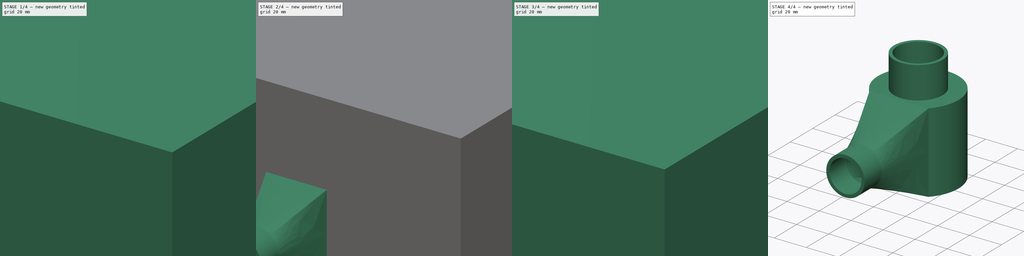
[diagram: build sequence overview — one tinted view per stage of 4, left to right]
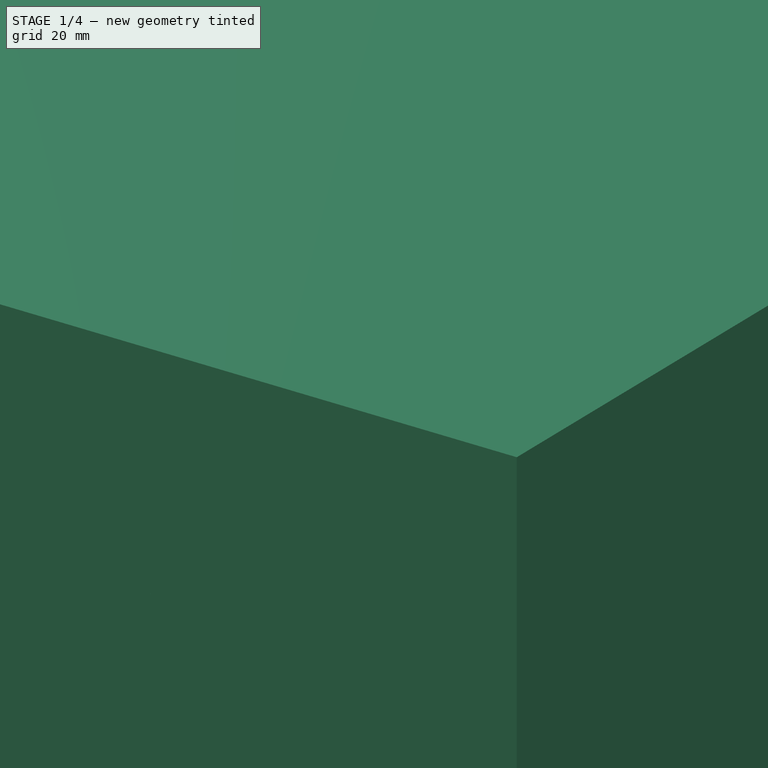
[diagram: stage 1 of 4 — iso view after this stage's code; geometry added in this stage tinted green]
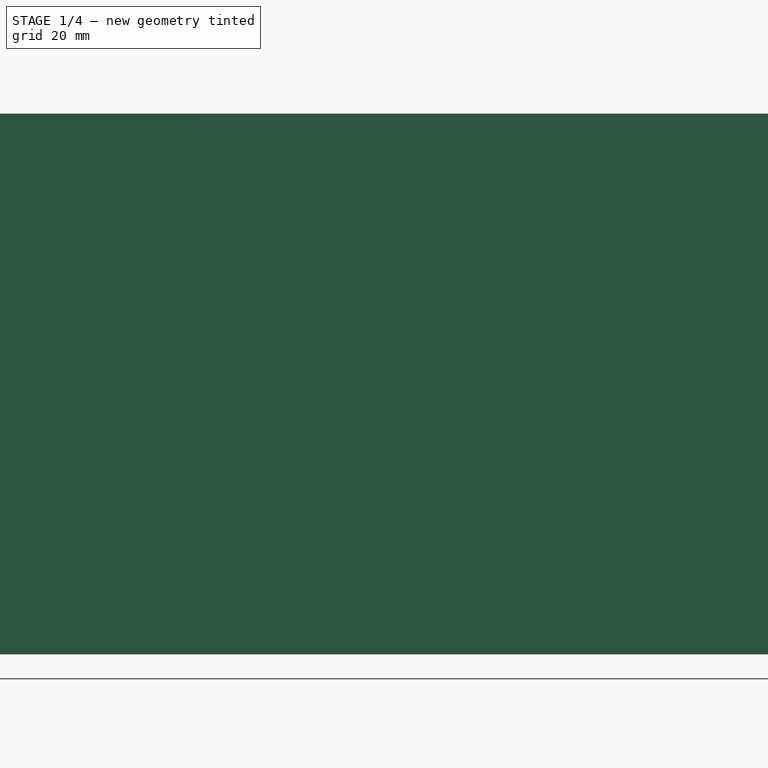
[diagram: stage 1 of 4 — front view after this stage's code; geometry added in this stage tinted green]
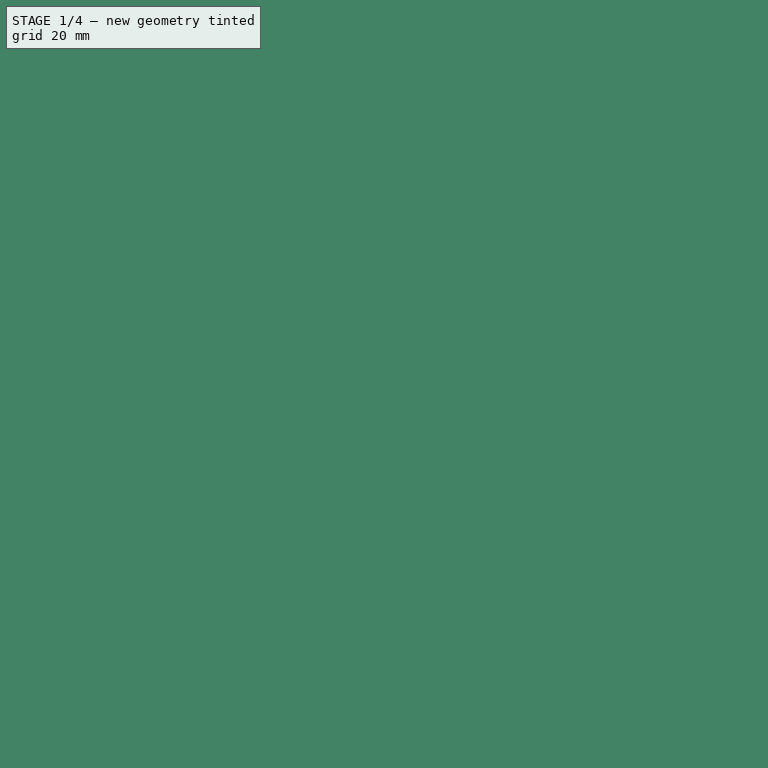
[diagram: stage 1 of 4 — top view after this stage's code; geometry added in this stage tinted green]
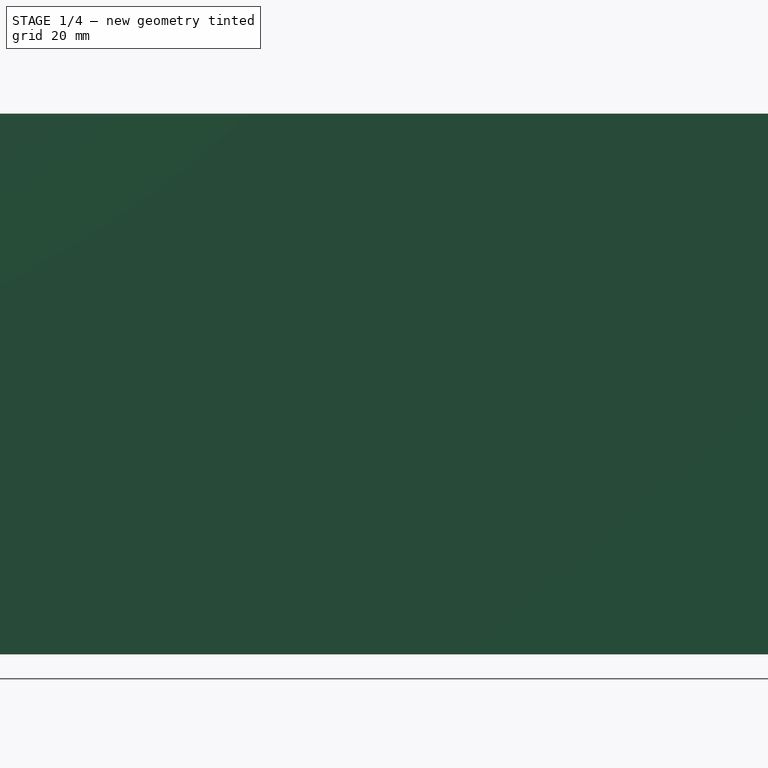
[diagram: stage 1 of 4 — right view after this stage's code; geometry added in this stage tinted green]
FCSTD DOCUMENT  (FreeCAD 0.18R4 (GitTag))
Label: honey_pump
License: All rights reserved
LicenseURL: http://en.wikipedia.org/wiki/All_rights_reserved
objects: PartDesign::Body×8, Sketcher::SketchObject×7, PartDesign::Pad×5, PartDesign::Boolean×4, PartDesign::FeatureBase×3, Spreadsheet::Sheet×1, PartDesign::Revolution×1, PartDesign::Plane×1, PartDesign::AdditiveLoft×1
note: 37 computed .brp shape members not serialized (recipe doc carries the construction recipe); baked Part::Feature solids carry a one-line shape summary decoded from their .brp

FEATURE [Spreadsheet::Sheet] Spreadsheet
  cells = A3=Auger shank radius; B3(auger_shank_r)==13 / 2; A4=Auger main radius; B4(auger_main_r)=10; A5=Extra radius for honey flowing off auger; B5(flow_extra_r)=10; A6=Body width; B6(body_z)=50; A7=Wall thickness; B7(wt)=2; A8=Pipe OD; B8(pipe_od)=28; A9=Pipe ID; B9(pipe_id)=24; A10=Outlet drop; B10(outlet_drop)=50; A11=Outlet straight section length; B11(outlet_length)=15; A12=Z fight fudge; B12(zff)=0.01; A13=Flow tube OD; B13(flow_tube_od)=26.4; A14=Shank sleeve length; B14(shank_sleeve_z)=15; A15=Flow tube sleeve length; B15(flow_tube_sleeve_z)=20; A16=Drain slice start offset; B16(drain_slice_offset)==Spreadsheet.wt * 2 + Spreadsheet.flow_tube_od / 2
FEATURE [Sketcher::SketchObject] Sketch002
  MapMode = 5
  Placement = pos=(0,0,0) rot=(1,0,0;1.5708rad)
  Support = -> [XZ_Plane002]
  expr: Constraints[35] = Spreadsheet.flow_extra_r
  expr: Constraints[34] = Spreadsheet.flow_tube_sleeve_z
  expr: Constraints[33] = Spreadsheet.wt
  expr: Constraints[32] = Spreadsheet.flow_tube_od / 2
  expr: Constraints[29] = Spreadsheet.auger_shank_r
  expr: Constraints[26] = Spreadsheet.wt
  expr: Constraints[30] = Spreadsheet.body_z
  expr: Constraints[25] = Spreadsheet.wt
  expr: Constraints[28] = Spreadsheet.shank_sleeve_z
  expr: Constraints[27] = Spreadsheet.wt
  expr: Constraints[24] = Spreadsheet.wt
  sketch-geometry (12):
    g0: LineSegment StartX=-15.2 StartY=50 StartZ=0 EndX=-15.2 EndY=70 EndZ=0
    g1: LineSegment StartX=-15.2 StartY=70 StartZ=0 EndX=-13.2 EndY=70 EndZ=0
    g2: LineSegment StartX=-13.2 StartY=70 StartZ=0 EndX=-13.2 EndY=48 EndZ=0
    g3: LineSegment StartX=-13.2 StartY=48 StartZ=0 EndX=-23.2 EndY=48 EndZ=0
    g4: LineSegment StartX=-23.2 StartY=48 StartZ=0 EndX=-23.2 EndY=2 EndZ=0
    g5: LineSegment StartX=-23.2 StartY=2 StartZ=0 EndX=-8.5 EndY=2 EndZ=0
    g6: LineSegment StartX=-8.5 StartY=2 StartZ=0 EndX=-8.5 EndY=17 EndZ=0
    g7: LineSegment StartX=-8.5 StartY=17 StartZ=0 EndX=-6.5 EndY=17 EndZ=0
    g8: LineSegment StartX=-6.5 StartY=17 StartZ=0 EndX=-6.5 EndY=0 EndZ=0
    g9: LineSegment StartX=-6.5 StartY=0 StartZ=0 EndX=-25.2 EndY=0 EndZ=0
    g10: LineSegment StartX=-25.2 StartY=0 StartZ=0 EndX=-25.2 EndY=50 EndZ=0
    g11: LineSegment StartX=-25.2 StartY=50 StartZ=0 EndX=-15.2 EndY=50 EndZ=0
  constraints (36):
    c: Vertical(g0)
    c: Coincident(g0,g1)
    c: Horizontal(g1)
    c: Coincident(g1,g2)
    c: Vertical(g2)
    c: Coincident(g2,g3)
    c: Horizontal(g3)
    c: Coincident(g3,g4)
    c: Vertical(g4)
    c: Coincident(g4,g5)
    c: Horizontal(g5)
    c: Coincident(g5,g6)
    c: Vertical(g6)
    c: Coincident(g6,g7)
    c: Coincident(g7,g8)
    c: Vertical(g8)
    c: Coincident(g8,g9)
    c: Horizontal(g9)
    c: Coincident(g9,g10)
    c: Vertical(g10)
    c: Coincident(g10,g11)
    c: Coincident(g11,g0)
    c: Horizontal(g11)
    c: Horizontal(g7)
    c: Distance(g7) = 2
    c: DistanceY(g2,g0) = 2
    c: DistanceX(g10,g3) = 2
    c: DistanceY(g9,g4) = 2
    c: Distance(g6) = 15
    c: DistanceX(g8,g-1) = 6.5
    c: Distance(g10) = 50
    c: PointOnObject(g8,g-1)
    c: DistanceX(g2,g-1) = 13.2
    c: Distance(g1) = 2
    c: Distance(g0) = 20
    c: Distance(g3) = 10
FEATURE [PartDesign::Revolution] Revolution001
  Angle = 360
  Axis = (0,-2e-16,1)
  Base = (0,0,0)
  Placement = pos=(0,0,0) rot=(1,0,0;1.5708rad)
  Profile = -> Sketch002
  ReferenceAxis = -> Sketch002 [V_Axis]
FEATURE [Sketcher::SketchObject] Sketch005
  MapMode = 5
  Support = -> [XY_Plane004]
  expr: Constraints[9] = Spreadsheet.drain_slice_offset
  expr: Constraints[8] = 100
  sketch-geometry (4):
    g0: LineSegment StartX=-50 StartY=82.8 StartZ=0 EndX=50 EndY=82.8 EndZ=0
    g1: LineSegment StartX=50 StartY=82.8 StartZ=0 EndX=50 EndY=-17.2 EndZ=0
    g2: LineSegment StartX=50 StartY=-17.2 StartZ=0 EndX=-50 EndY=-17.2 EndZ=0
    g3: LineSegment StartX=-50 StartY=-17.2 StartZ=0 EndX=-50 EndY=82.8 EndZ=0
  constraints (11):
    c: Coincident(g0,g1)
    c: Coincident(g1,g2)
    c: Coincident(g2,g3)
    c: Coincident(g3,g0)
    c: Horizontal(g2)
    c: Vertical(g1)
    c: Vertical(g3)
    c: Symmetric(g0,g0,g-2)
    c: Distance(g0) = 100
    c: DistanceY(g2,g-1) = 17.2
    c: Distance(g1) = 100
FEATURE [PartDesign::Pad] Pad001
  Length = 100
  Length2 = 100
  Profile = -> Sketch005
  Type = 0
FEATURE [PartDesign::Body] Body004
  Group = -> [Sketch005,Pad001]
  Origin = -> Origin004
  Tip = -> Pad001
FEATURE [PartDesign::Boolean] Boolean
  BaseFeature = -> Revolution001
  Group = -> [Body004]
  Type = 2
FEATURE [Sketcher::SketchObject] Sketch011
  MapMode = 5
  Support = -> [XY_Plane009]
  expr: Constraints[8] = Spreadsheet.drain_slice_offset
  sketch-geometry (4):
    g0: LineSegment StartX=-100 StartY=182.8 StartZ=0 EndX=100 EndY=182.8 EndZ=0
    g1: LineSegment StartX=100 StartY=182.8 StartZ=0 EndX=100 EndY=-17.2 EndZ=0
    g2: LineSegment StartX=100 StartY=-17.2 StartZ=0 EndX=-100 EndY=-17.2 EndZ=0
    g3: LineSegment StartX=-100 StartY=-17.2 StartZ=0 EndX=-100 EndY=182.8 EndZ=0
  constraints (11):
    c: Coincident(g0,g1)
    c: Coincident(g1,g2)
    c: Coincident(g2,g3)
    c: Coincident(g3,g0)
    c: Horizontal(g2)
    c: Vertical(g1)
    c: Vertical(g3)
    c: Symmetric(g0,g0,g-2)
    c: DistanceY(g1,g-1) = 17.2
    c: Distance(g3) = 200
    c: Distance(g0) = 200
FEATURE [PartDesign::Pad] Pad004
  Length = 100
  Length2 = 100
  Profile = -> Sketch011
  Type = 0
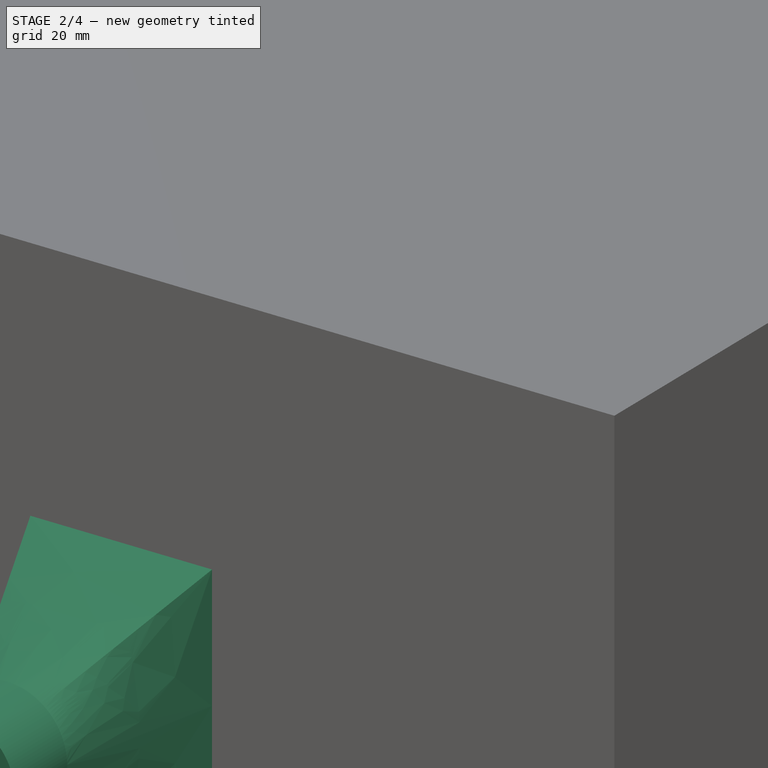
[diagram: stage 2 of 4 — iso view after this stage's code; geometry added in this stage tinted green]
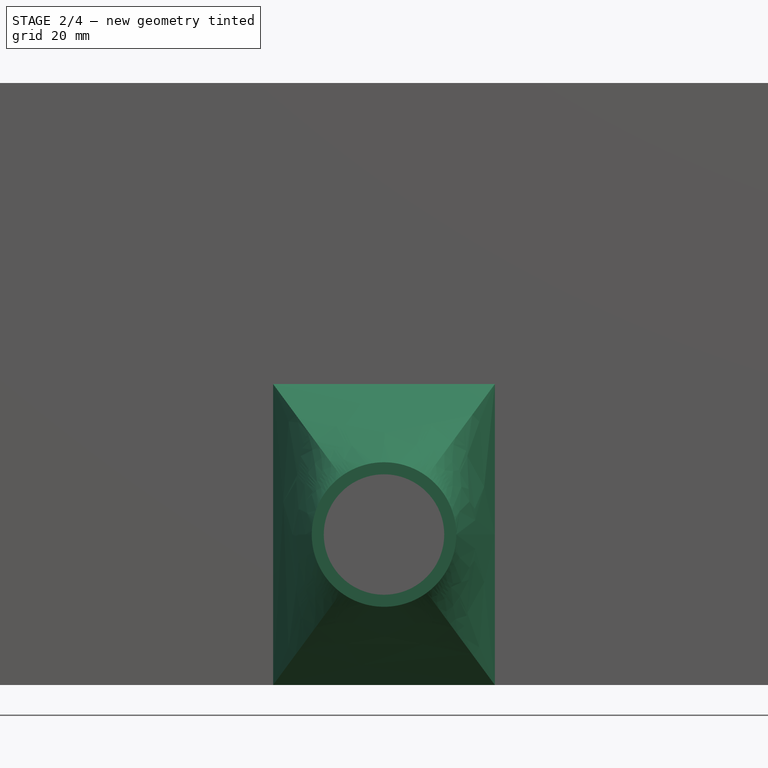
[diagram: stage 2 of 4 — front view after this stage's code; geometry added in this stage tinted green]
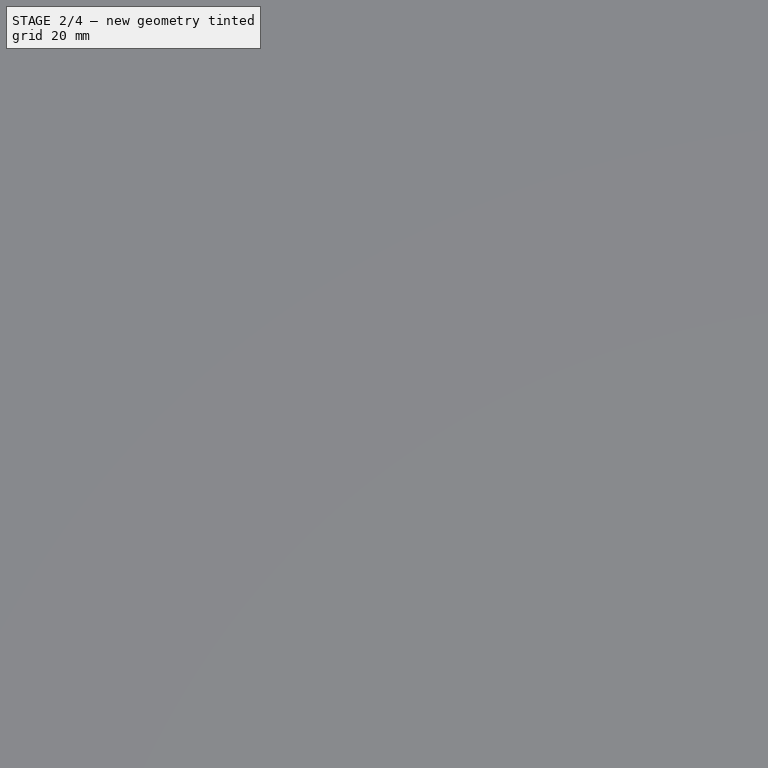
[diagram: stage 2 of 4 — top view after this stage's code; geometry added in this stage tinted green]
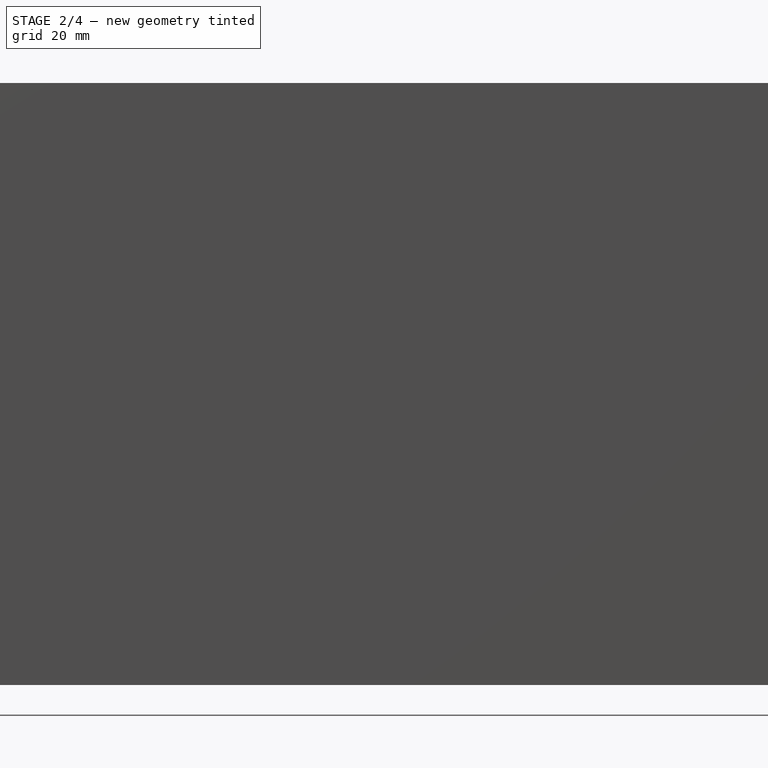
[diagram: stage 2 of 4 — right view after this stage's code; geometry added in this stage tinted green]
FEATURE [PartDesign::Plane] DatumPlane
  Length = 63.041
  MapMode = 5
  Placement = pos=(0,-17.2,0) rot=(1,0,0;1.5708rad)
  ResizeMode = 0
  Support = -> [Boolean]
  Width = 92.6931
FEATURE [Sketcher::SketchObject] Sketch006
  ExternalGeometry = -> [Boolean]
  MapMode = 5
  Placement = pos=(0,-17.2,0) rot=(1,0,0;1.5708rad)
  Support = -> [Boolean]
  sketch-geometry (8):
    g0: LineSegment StartX=-18.4174 StartY=50 StartZ=0 EndX=18.4174 EndY=50 EndZ=0
    g1: LineSegment StartX=18.4174 StartY=50 StartZ=0 EndX=18.4174 EndY=0 EndZ=0
    g2: LineSegment StartX=18.4174 StartY=0 StartZ=0 EndX=-18.4174 EndY=0 EndZ=0
    g3: LineSegment StartX=-18.4174 StartY=0 StartZ=0 EndX=-18.4174 EndY=50 EndZ=0
    g4: LineSegment StartX=15.5692 StartY=2 StartZ=0 EndX=-15.5692 EndY=2 EndZ=0
    g5: LineSegment StartX=-15.5692 StartY=2 StartZ=0 EndX=-15.5692 EndY=48 EndZ=0
    g6: LineSegment StartX=-15.5692 StartY=48 StartZ=0 EndX=15.5692 EndY=48 EndZ=0
    g7: LineSegment StartX=15.5692 StartY=48 StartZ=0 EndX=15.5692 EndY=2 EndZ=0
  constraints (20):
    c: Coincident(g0,g1)
    c: Coincident(g1,g2)
    c: Coincident(g2,g3)
    c: Coincident(g3,g0)
    c: Horizontal(g0)
    c: Horizontal(g2)
    c: Vertical(g1)
    c: Vertical(g3)
    c: Coincident(g0,g-8)
    c: Coincident(g1,g-9)
    c: Coincident(g4,g5)
    c: Coincident(g5,g6)
    c: Coincident(g6,g7)
    c: Coincident(g7,g4)
    c: Horizontal(g4)
    c: Horizontal(g6)
    c: Vertical(g5)
    c: Vertical(g7)
    c: Coincident(g4,g-10)
    c: Coincident(g5,g-7)
FEATURE [Sketcher::SketchObject] Sketch008
  AttachmentOffset = pos=(0,0,50) rot=(1,0,0;0rad)
  MapMode = 5
  Placement = pos=(0,-50,-1.11e-14) rot=(1,0,0;1.5708rad)
  Support = -> [XZ_Plane002]
  expr: AttachmentOffset.Base.z = Spreadsheet.outlet_drop
  expr: Constraints[4] = Spreadsheet.body_z / 2
  expr: Constraints[1] = Spreadsheet.pipe_id / 2 - Spreadsheet.wt
  expr: Constraints[0] = Spreadsheet.pipe_id / 2
  sketch-geometry (2):
    g0: Circle CenterX=0 CenterY=25 CenterZ=0 NormalX=0 NormalY=0 NormalZ=1 AngleXU=0 Radius=12
    g1: Circle CenterX=0 CenterY=25 CenterZ=0 NormalX=0 NormalY=0 NormalZ=1 AngleXU=0 Radius=10
  constraints (5):
    c: Radius(g0) = 12
    c: Radius(g1) = 10
    c: PointOnObject(g0,g-2)
    c: Coincident(g0,g1)
    c: DistanceY(g-1,g0) = 25
FEATURE [PartDesign::AdditiveLoft] AdditiveLoft
  BaseFeature = -> Boolean
  Closed = false
  Profile = -> Sketch008
  Ruled = false
  Sections = -> [Sketch006]
FEATURE [PartDesign::Pad] Pad002
  BaseFeature = -> AdditiveLoft
  Length = 15
  Length2 = 100
  Profile = -> AdditiveLoft [Face11]
  Type = 0
  expr: Length = Spreadsheet.outlet_length
FEATURE [PartDesign::Body] Body007  label="Drain"
  Group = -> [Clone001,Boolean002]
  Origin = -> Origin007
  Placement = pos=(0,0,0) rot=(1,0,0;-1.5708rad)
  Tip = -> Boolean002
FEATURE [PartDesign::FeatureBase] Clone002
  BaseFeature = -> Body002
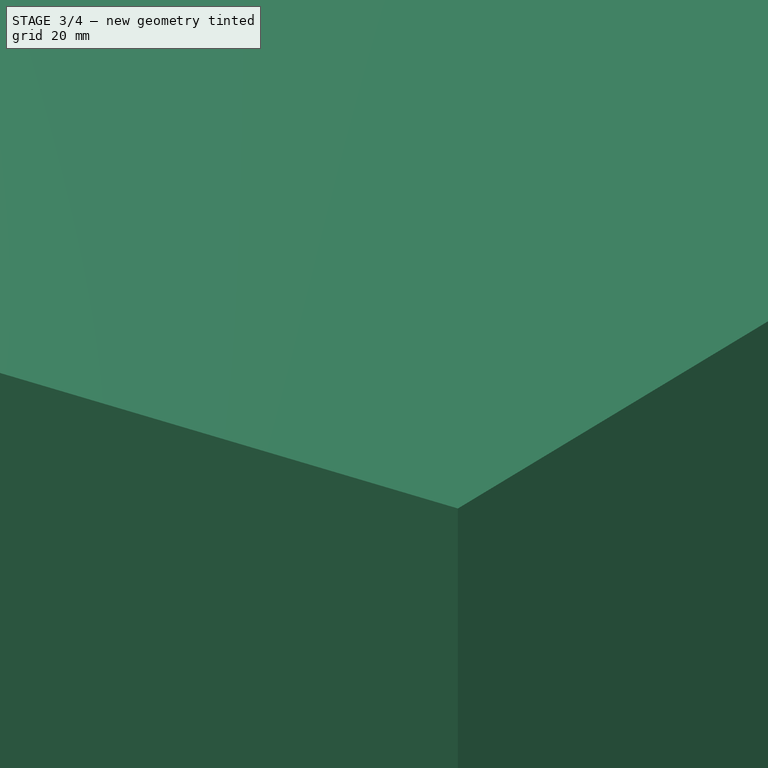
[diagram: stage 3 of 4 — iso view after this stage's code; geometry added in this stage tinted green]
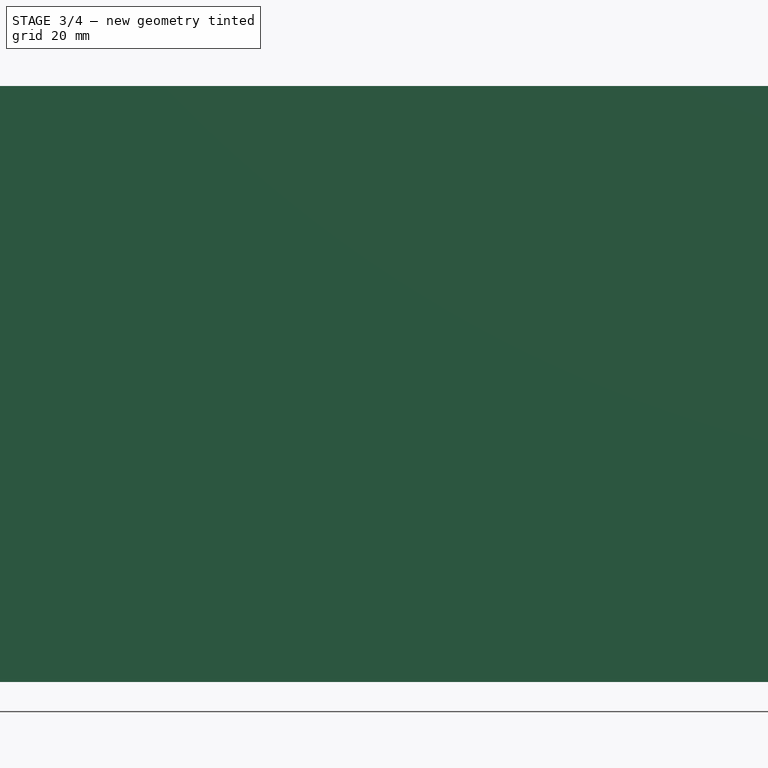
[diagram: stage 3 of 4 — front view after this stage's code; geometry added in this stage tinted green]
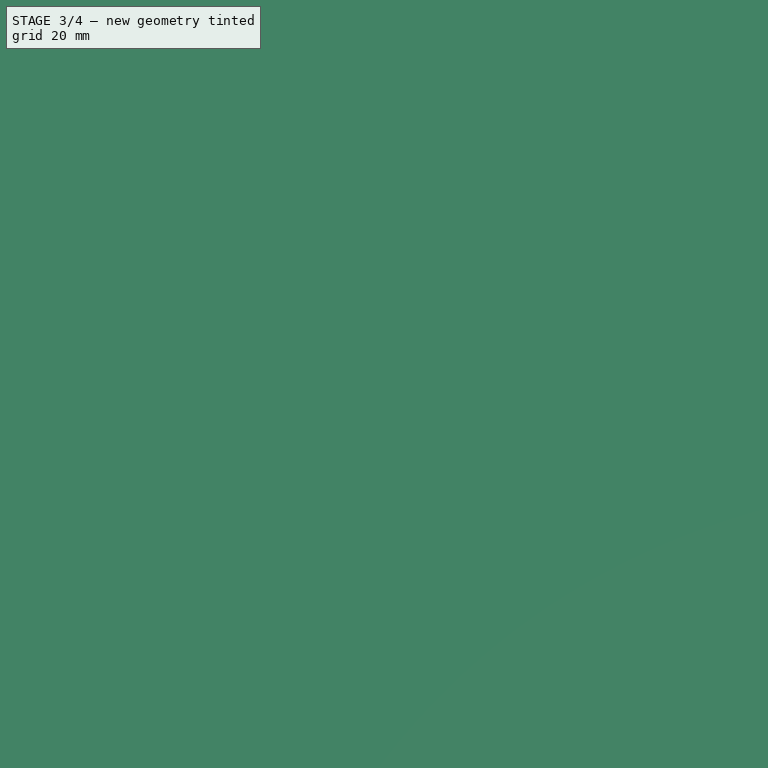
[diagram: stage 3 of 4 — top view after this stage's code; geometry added in this stage tinted green]
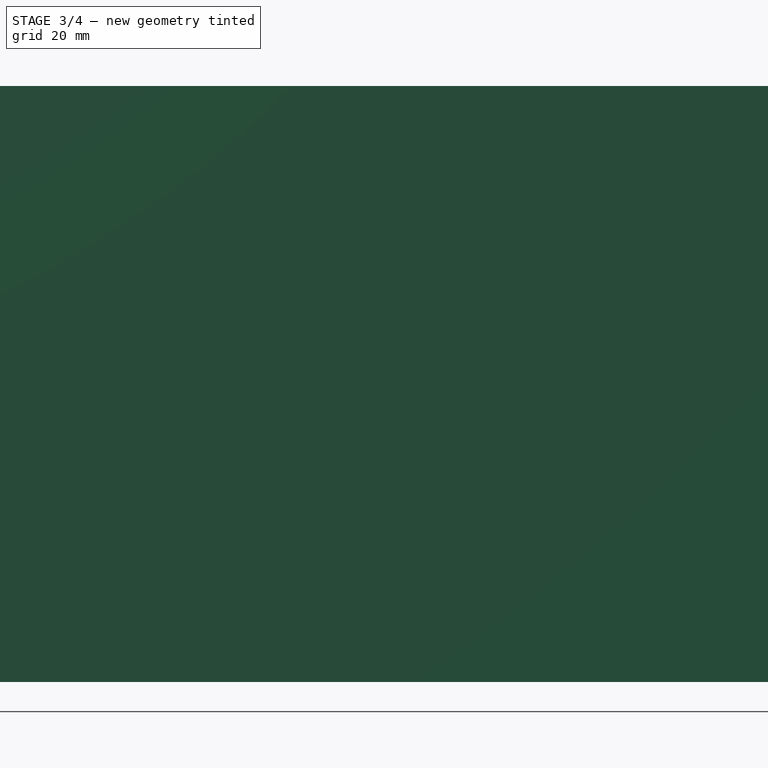
[diagram: stage 3 of 4 — right view after this stage's code; geometry added in this stage tinted green]
FEATURE [PartDesign::Body] Body  label="Barrel"
  Group = -> [Boolean001]
  Origin = -> Origin
  Tip = -> Boolean001
FEATURE [Sketcher::SketchObject] Sketch
  MapMode = 5
  Support = -> [XY_Plane006]
  expr: Constraints[9] = Spreadsheet.drain_slice_offset
  sketch-geometry (4):
    g0: LineSegment StartX=-100 StartY=-217.2 StartZ=0 EndX=100 EndY=-217.2 EndZ=0
    g1: LineSegment StartX=100 StartY=-217.2 StartZ=0 EndX=100 EndY=-17.2 EndZ=0
    g2: LineSegment StartX=100 StartY=-17.2 StartZ=0 EndX=-100 EndY=-17.2 EndZ=0
    g3: LineSegment StartX=-100 StartY=-17.2 StartZ=0 EndX=-100 EndY=-217.2 EndZ=0
  constraints (11):
    c: Coincident(g0,g1)
    c: Coincident(g1,g2)
    c: Coincident(g2,g3)
    c: Coincident(g3,g0)
    c: Horizontal(g0)
    c: Vertical(g1)
    c: Vertical(g3)
    c: Symmetric(g1,g2,g-2)
    c: Distance(g0) = 200
    c: DistanceY(g1,g-1) = 17.2
    c: Distance(g1) = 200
FEATURE [PartDesign::Pad] Pad
  Length = 100
  Length2 = 100
  Profile = -> Sketch
  Type = 0
FEATURE [PartDesign::Body] Body006  label="Drain_slice"
  Group = -> [Sketch,Pad]
  Origin = -> Origin006
  Tip = -> Pad
FEATURE [PartDesign::FeatureBase] Clone001
  BaseFeature = -> Pad002
FEATURE [PartDesign::Body] Body009  label="Lid_cutter"
  Group = -> [Sketch011,Pad004]
  Origin = -> Origin009
  Placement = pos=(0,0,48) rot=(0,0,1;0rad)
  Tip = -> Pad004
  expr: Placement.Base.z = Spreadsheet.body_z - Spreadsheet.wt
FEATURE [PartDesign::Boolean] Boolean003
  BaseFeature = -> Clone002
  Group = -> [Body009]
  Type = 2
FEATURE [PartDesign::Body] Body008  label="Lid"
  Group = -> [Clone002,Boolean003]
  Origin = -> Origin008
  Tip = -> Boolean003
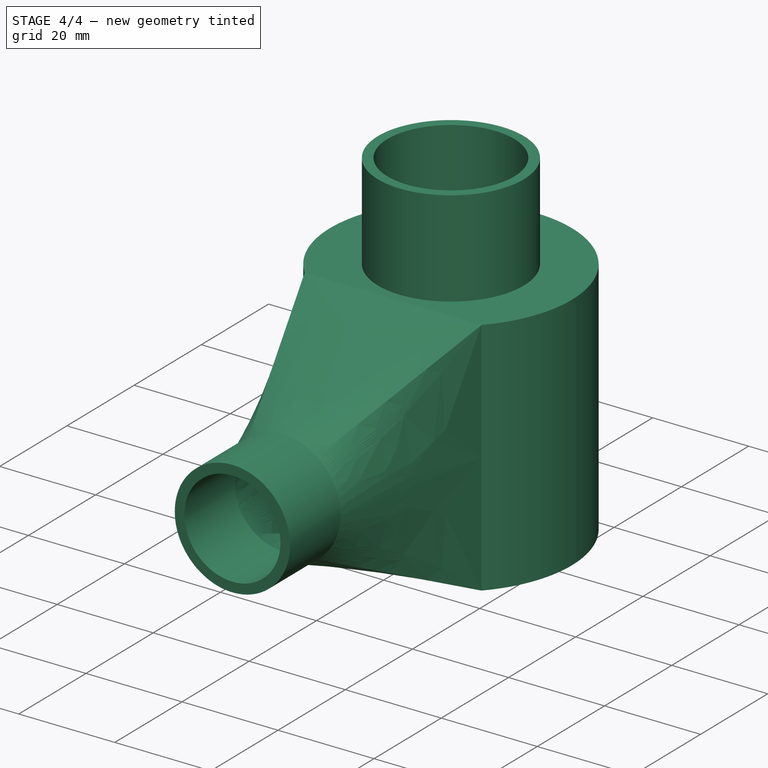
[diagram: stage 4 of 4 — iso view after this stage's code; geometry added in this stage tinted green]
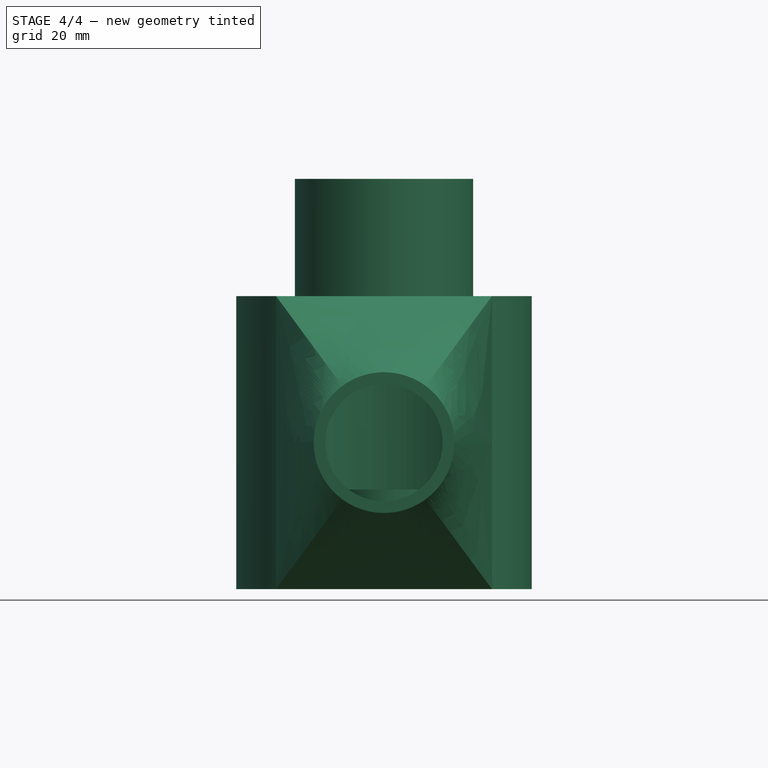
[diagram: stage 4 of 4 — front view after this stage's code; geometry added in this stage tinted green]
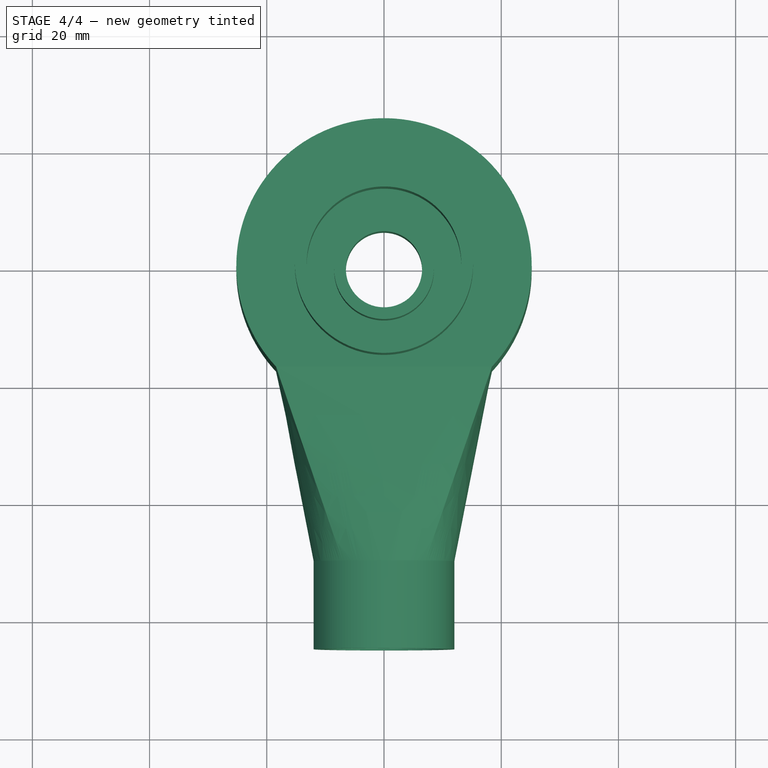
[diagram: stage 4 of 4 — top view after this stage's code; geometry added in this stage tinted green]
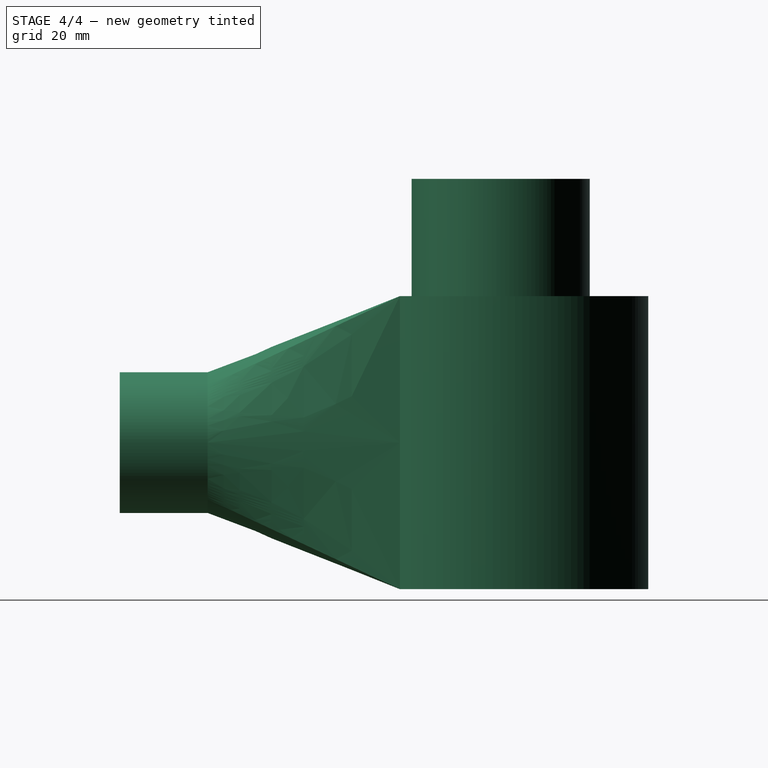
[diagram: stage 4 of 4 — right view after this stage's code; geometry added in this stage tinted green]
FEATURE [PartDesign::Body] Body002  label="Shell_v2"
  Group = -> [Sketch002,Revolution001,Boolean,DatumPlane,Sketch006,Sketch008,AdditiveLoft,Pad002]
  Origin = -> Origin002
  Tip = -> Pad002
FEATURE [Sketcher::SketchObject] Sketch009
  MapMode = 5
  Support = -> [XY_Plane005]
  expr: Constraints[8] = Spreadsheet.drain_slice_offset
  sketch-geometry (4):
    g0: LineSegment StartX=-100 StartY=182.8 StartZ=0 EndX=100 EndY=182.8 EndZ=0
    g1: LineSegment StartX=100 StartY=182.8 StartZ=0 EndX=100 EndY=-17.2 EndZ=0
    g2: LineSegment StartX=100 StartY=-17.2 StartZ=0 EndX=-100 EndY=-17.2 EndZ=0
    g3: LineSegment StartX=-100 StartY=-17.2 StartZ=0 EndX=-100 EndY=182.8 EndZ=0
  constraints (11):
    c: Coincident(g0,g1)
    c: Coincident(g1,g2)
    c: Coincident(g2,g3)
    c: Coincident(g3,g0)
    c: Horizontal(g2)
    c: Vertical(g1)
    c: Vertical(g3)
    c: Symmetric(g0,g0,g-2)
    c: DistanceY(g1,g-1) = 17.2
    c: Distance(g3) = 200
    c: Distance(g0) = 200
FEATURE [PartDesign::Pad] Pad003  label="Chop"
  Length = 48
  Length2 = 100
  Profile = -> Sketch009
  Type = 0
  expr: Length = Spreadsheet.body_z - Spreadsheet.wt
FEATURE [PartDesign::Body] Body005  label="Body_Slicer"
  Group = -> [Sketch009,Pad003]
  Origin = -> Origin005
  Tip = -> Pad003
FEATURE [PartDesign::FeatureBase] Clone
  BaseFeature = -> Pad002
FEATURE [PartDesign::Boolean] Boolean001
  Group = -> [Clone,Body005]
  Type = 2
FEATURE [PartDesign::Boolean] Boolean002
  BaseFeature = -> Clone001
  Group = -> [Body006]
  Type = 2
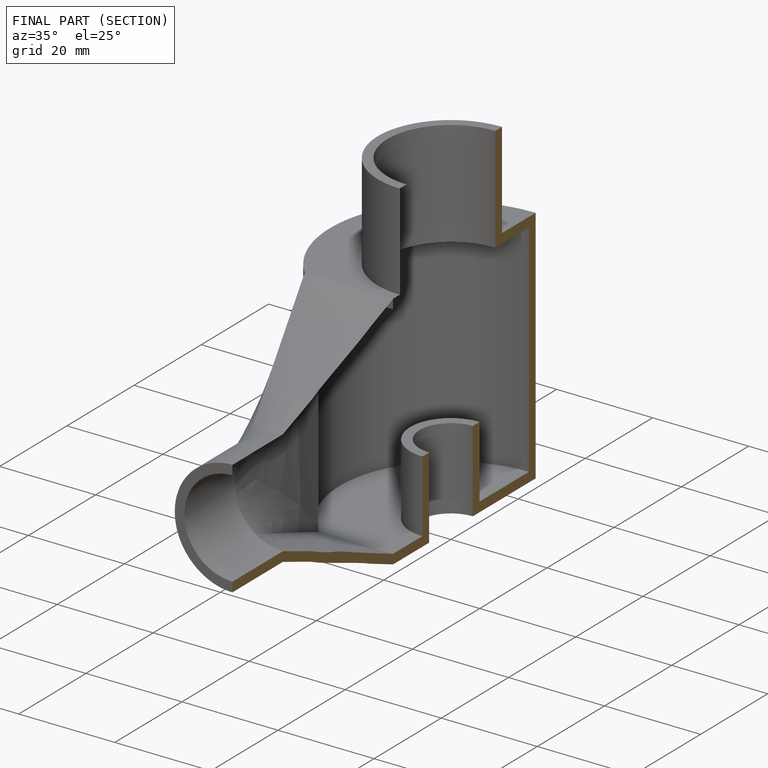
[diagram: finished part — half-section view (interior)]
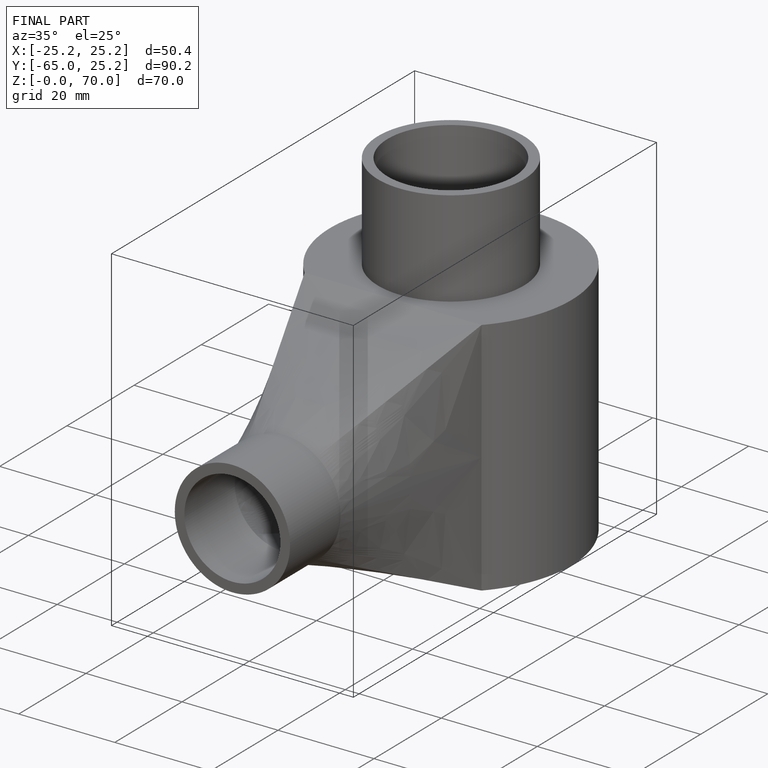
[diagram: finished part — iso view with bounding-box wireframe]
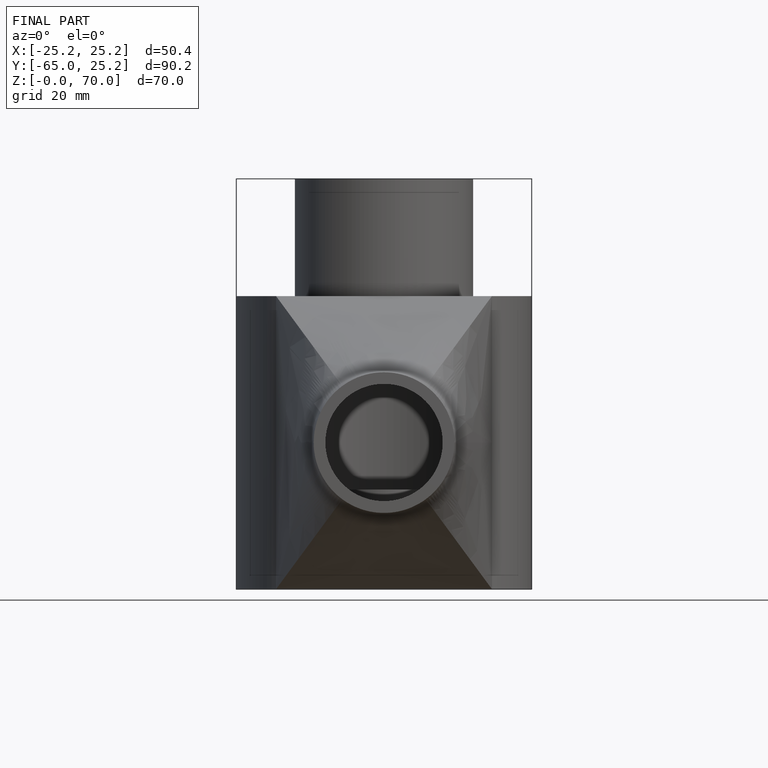
[diagram: finished part — front view with bounding-box wireframe]
